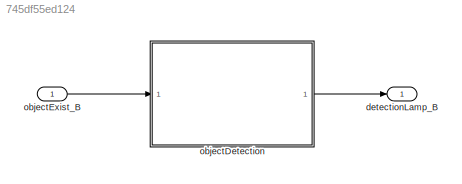
MODEL slx_745df55ed124
KIND model
CONFIG AbsTol = auto
CONFIG EnableMultiTasking = off
CONFIG FixedStep = 0.01
CONFIG MaxStep = auto
CONFIG MinStep = auto
CONFIG RelTol = 1e-3
CONFIG SampleTimeConstraint = Unconstrained
CONFIG SolverName = FixedStepDiscrete
CONFIG StartTime = 0.0
CONFIG StopTime = 10.0
BLOCK [Outport] detectionLamp_B
  OutDataTypeStr = boolean
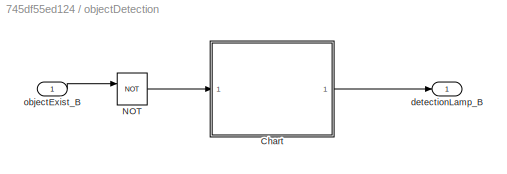
BLOCK [SubSystem] objectDetection
  RTWFcnNameOpts = Use subsystem name
  RTWFileNameOpts = Use subsystem name
  RTWSystemCode = Reusable function
  TreatAsAtomicUnit = on
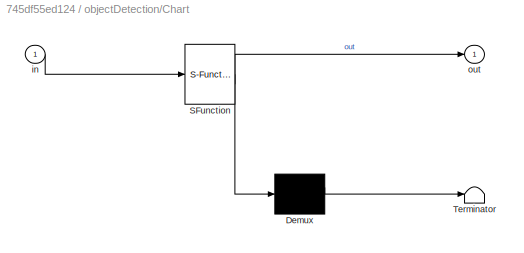
BLOCK [SubSystem] objectDetection/Chart
  ErrorFcn = Stateflow.Translate.translate
  PermitHierarchicalResolution = ExplicitOnly
  SFBlockType = Chart
  TreatAsAtomicUnit = on
BLOCK [Demux] objectDetection/Chart/ Demux 
  Outputs = 1
BLOCK [S-Function] objectDetection/Chart/ SFunction 
  EnableBusSupport = on
  FunctionName = sf_sfun
  PortCounts = [1 2]
  SFcnIsStateOwnerBlock = off
  SFunctionDeploymentMode = off
  Tag = Stateflow S-Function 3
BLOCK [Terminator] objectDetection/Chart/ Terminator 
BLOCK [Inport] objectDetection/Chart/in
BLOCK [Outport] objectDetection/Chart/out
BLOCK [Logic] objectDetection/NOT
  AllPortsSameDT = off
  IconShape = distinctive
  Operator = NOT
  OutDataTypeStr = boolean
BLOCK [Outport] objectDetection/detectionLamp_B
  OutDataTypeStr = boolean
BLOCK [Inport] objectDetection/objectExist_B
  OutDataTypeStr = boolean
BLOCK [Inport] objectExist_B
  OutDataTypeStr = boolean
LINE objectDetection/Chart:1 -> objectDetection/detectionLamp_B:1
LINE objectDetection/NOT:1 -> objectDetection/Chart:1
LINE objectDetection/objectExist_B:1 -> objectDetection/NOT:1
LINE objectDetection:1 -> detectionLamp_B:1
LINE objectExist_B:1 -> objectDetection:1
CHART objectDetection/Chart states=2 transitions=3
  STATE_LABEL 'init\nen:\nout = false;'
  STATE_LABEL 'hold\nen:\ncounter = 0;\ndu:\ncounter = counter + 1;\nout = true;'
CHART  states=0 transitions=0
